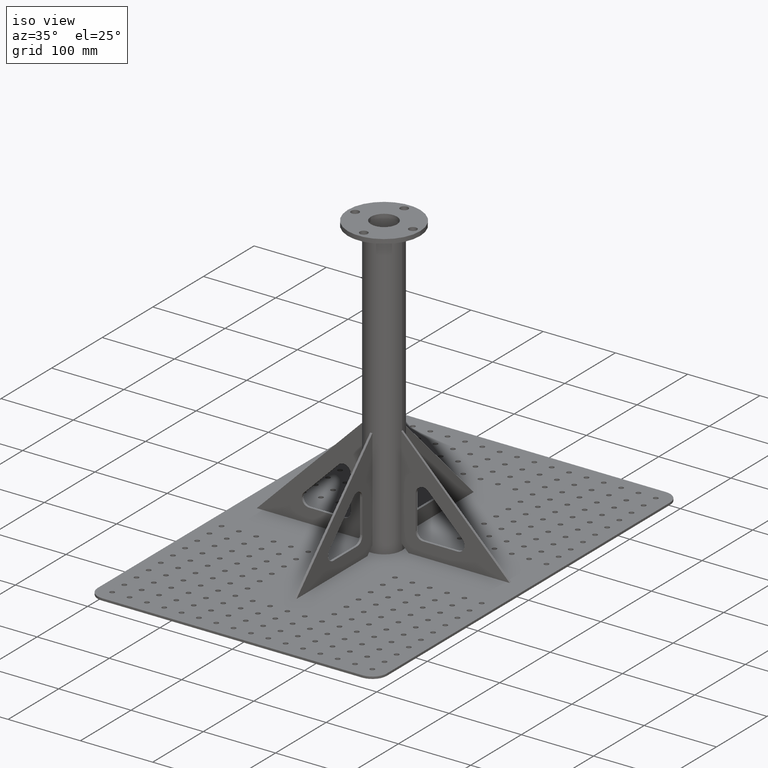
[diagram: clean part render]
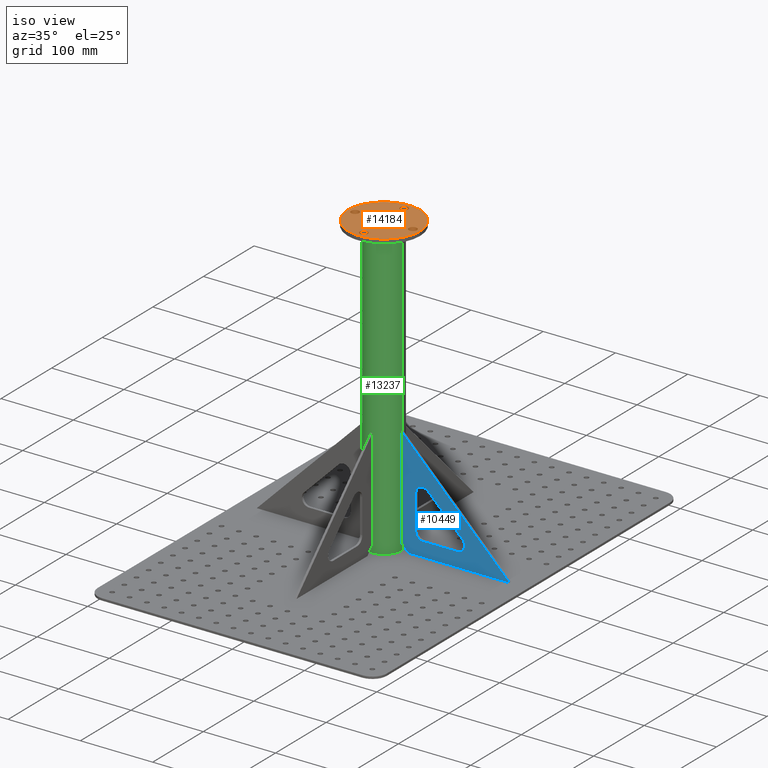
[diagram: same view with three faces highlighted in distinct colors, each labeled with its STEP entity id]
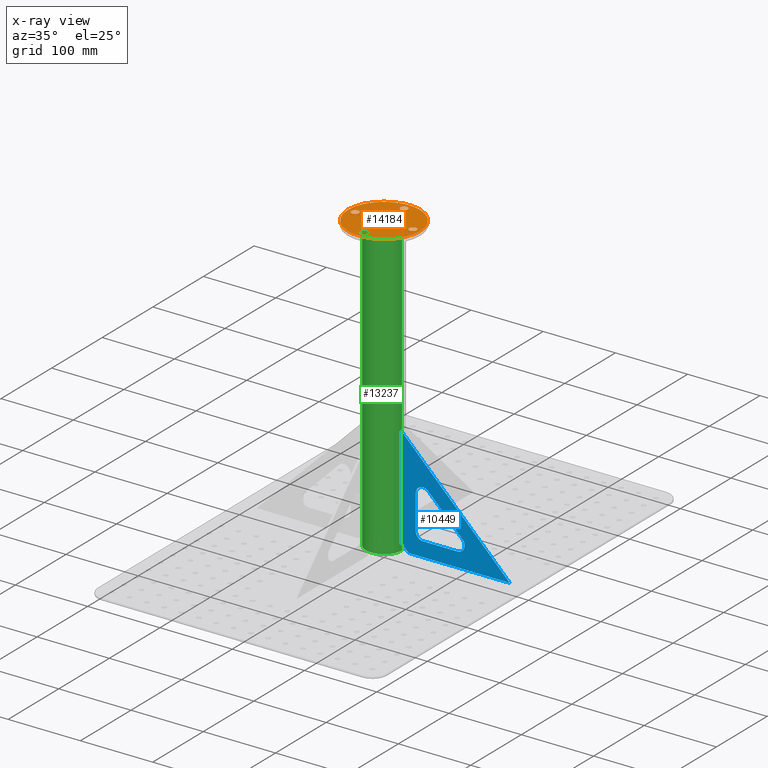
[diagram: x-ray of the same camera — body ghosted, the three highlighted faces saturated]
A machine part, iso view with three faces highlighted in distinct colors.
The next image is the same camera in x-ray (body ghosted, the three faces saturated) — at least one of them is partly hidden behind the body in this view.
Their STEP definitions:

[orange] entity #14184 — the highlighted planar face has unit normal (0, 0, 1).
#165 = ORIENTED_EDGE ( 'NONE', *, *, #16694, .F. ) ;
#187 = CARTESIAN_POINT ( 'NONE',  ( 40.00000000000113000, 1.131969790019571100E-012, 6.000000000000000000 ) ) ;
#231 = EDGE_CURVE ( 'NONE', #17860, #13090, #17701, .T. ) ;
#333 = DIRECTION ( 'NONE',  ( 0.0000000000000000000, 0.0000000000000000000, 1.000000000000000000 ) ) ;
#525 = DIRECTION ( 'NONE',  ( 0.0000000000000000000, 0.0000000000000000000, 1.000000000000000000 ) ) ;
#613 = CARTESIAN_POINT ( 'NONE',  ( 50.00000000000000000, 6.123233995736766100E-015, 6.000000000000000000 ) ) ;
#711 = CARTESIAN_POINT ( 'NONE',  ( 0.0000000000000000000, 0.0000000000000000000, 6.000000000000000000 ) ) ;
#732 = CARTESIAN_POINT ( 'NONE',  ( -45.50000000000068900, -1.136868377216160300E-012, 6.000000000000000000 ) ) ;
#859 = VERTEX_POINT ( 'NONE', #6797 ) ;
#989 = DIRECTION ( 'NONE',  ( 1.000000000000000000, 0.0000000000000000000, 0.0000000000000000000 ) ) ;
#1029 = ORIENTED_EDGE ( 'NONE', *, *, #2082, .T. ) ;
#1185 = DIRECTION ( 'NONE',  ( 0.0000000000000000000, 0.0000000000000000000, 1.000000000000000000 ) ) ;
#1346 = CIRCLE ( 'NONE', #21220, 5.500000000002431800 ) ;
#1422 = DIRECTION ( 'NONE',  ( 0.0000000000000000000, 0.0000000000000000000, 1.000000000000000000 ) ) ;
#1593 = CARTESIAN_POINT ( 'NONE',  ( -39.99999999999887000, -1.136868377216160300E-012, 6.000000000000000000 ) ) ;
#1692 = CARTESIAN_POINT ( 'NONE',  ( 0.0000000000000000000, 40.00000000000000000, 6.000000000000000000 ) ) ;
#1849 = DIRECTION ( 'NONE',  ( 1.000000000000000000, 0.0000000000000000000, 0.0000000000000000000 ) ) ;
#1915 = VERTEX_POINT ( 'NONE', #613 ) ;
#2082 = EDGE_CURVE ( 'NONE', #1915, #4601, #19197, .T. ) ;
#2229 = DIRECTION ( 'NONE',  ( 0.0000000000000000000, 0.0000000000000000000, 1.000000000000000000 ) ) ;
#2238 = CARTESIAN_POINT ( 'NONE',  ( -5.500000000000167900, -40.00000000000000000, 6.000000000000000000 ) ) ;
#2597 = CIRCLE ( 'NONE', #18878, 5.500000000000879300 ) ;
#2887 = AXIS2_PLACEMENT_3D ( 'NONE', #6263, #18052, #7966 ) ;
#2945 = EDGE_CURVE ( 'NONE', #16123, #6654, #8660, .T. ) ;
#3295 = DIRECTION ( 'NONE',  ( 1.000000000000000000, 0.0000000000000000000, 0.0000000000000000000 ) ) ;
#3394 = DIRECTION ( 'NONE',  ( 1.000000000000000000, 0.0000000000000000000, 0.0000000000000000000 ) ) ;
#3706 = ORIENTED_EDGE ( 'NONE', *, *, #7733, .F. ) ;
#3793 = DIRECTION ( 'NONE',  ( 0.0000000000000000000, 0.0000000000000000000, 1.000000000000000000 ) ) ;
#3806 = AXIS2_PLACEMENT_3D ( 'NONE', #10359, #333, #12055 ) ;
#4065 = AXIS2_PLACEMENT_3D ( 'NONE', #11228, #1185, #12935 ) ;
#4081 = PLANE ( 'NONE',  #10476 ) ;
#4539 = FACE_BOUND ( 'NONE', #17967, .T. ) ;
#4593 = CIRCLE ( 'NONE', #11037, 18.00000000000000000 ) ;
#4601 = VERTEX_POINT ( 'NONE', #17078 ) ;
#4909 = ORIENTED_EDGE ( 'NONE', *, *, #2945, .F. ) ;
#5059 = FACE_BOUND ( 'NONE', #14239, .T. ) ;
#6002 = CIRCLE ( 'NONE', #9677, 5.499999999999999100 ) ;
#6219 = CIRCLE ( 'NONE', #19333, 5.500000000001816300 ) ;
#6263 = CARTESIAN_POINT ( 'NONE',  ( 0.0000000000000000000, 0.0000000000000000000, 6.000000000000000000 ) ) ;
#6344 = DIRECTION ( 'NONE',  ( 0.0000000000000000000, 0.0000000000000000000, 1.000000000000000000 ) ) ;
#6654 = VERTEX_POINT ( 'NONE', #17043 ) ;
#6686 = AXIS2_PLACEMENT_3D ( 'NONE', #11460, #1422, #13164 ) ;
#6797 = CARTESIAN_POINT ( 'NONE',  ( 5.500000000004695800, -40.00000000000000000, 6.000000000000000000 ) ) ;
#7276 = CARTESIAN_POINT ( 'NONE',  ( 5.499999999999999100, 40.00000000000000000, 6.000000000000000000 ) ) ;
#7733 = EDGE_CURVE ( 'NONE', #15149, #16418, #6219, .T. ) ;
#7966 = DIRECTION ( 'NONE',  ( 1.000000000000000000, 0.0000000000000000000, 0.0000000000000000000 ) ) ;
#8329 = CARTESIAN_POINT ( 'NONE',  ( 18.00000000000000000, 2.204364238465235400E-015, 6.000000000000000000 ) ) ;
#8660 = CIRCLE ( 'NONE', #9542, 5.500000000000879300 ) ;
#8850 = VERTEX_POINT ( 'NONE', #2238 ) ;
#8990 = FACE_BOUND ( 'NONE', #11105, .T. ) ;
#9055 = EDGE_CURVE ( 'NONE', #4601, #1915, #15503, .T. ) ;
#9072 = VERTEX_POINT ( 'NONE', #17975 ) ;
#9126 = DIRECTION ( 'NONE',  ( 1.000000000000000000, 0.0000000000000000000, -0.0000000000000000000 ) ) ;
#9286 = ORIENTED_EDGE ( 'NONE', *, *, #17940, .F. ) ;
#9516 = FACE_BOUND ( 'NONE', #20891, .T. ) ;
#9542 = AXIS2_PLACEMENT_3D ( 'NONE', #10544, #525, #12260 ) ;
#9590 = CARTESIAN_POINT ( 'NONE',  ( 34.50000000000025600, 1.131969790019571100E-012, 6.000000000000000000 ) ) ;
#9677 = AXIS2_PLACEMENT_3D ( 'NONE', #1692, #13443, #3394 ) ;
#9936 = ORIENTED_EDGE ( 'NONE', *, *, #17455, .F. ) ;
#9962 = AXIS2_PLACEMENT_3D ( 'NONE', #15950, #2229, #20754 ) ;
#10025 = FACE_BOUND ( 'NONE', #20697, .T. ) ;
#10359 = CARTESIAN_POINT ( 'NONE',  ( 0.0000000000000000000, 40.00000000000000000, 6.000000000000000000 ) ) ;
#10446 = CIRCLE ( 'NONE', #3806, 5.499999999999999100 ) ;
#10476 = AXIS2_PLACEMENT_3D ( 'NONE', #711, #19213, #9126 ) ;
#10544 = CARTESIAN_POINT ( 'NONE',  ( 40.00000000000113000, 1.131969790019571100E-012, 6.000000000000000000 ) ) ;
#11018 = DIRECTION ( 'NONE',  ( 0.0000000000000000000, 0.0000000000000000000, 1.000000000000000000 ) ) ;
#11037 = AXIS2_PLACEMENT_3D ( 'NONE', #16415, #6344, #18135 ) ;
#11105 = EDGE_LOOP ( 'NONE', ( #4909, #9286 ) ) ;
#11228 = CARTESIAN_POINT ( 'NONE',  ( 0.0000000000000000000, 0.0000000000000000000, 6.000000000000000000 ) ) ;
#11394 = ORIENTED_EDGE ( 'NONE', *, *, #17985, .F. ) ;
#11460 = CARTESIAN_POINT ( 'NONE',  ( 2.263939580039142200E-012, -40.00000000000000000, 6.000000000000000000 ) ) ;
#11803 = AXIS2_PLACEMENT_3D ( 'NONE', #13845, #3793, #15522 ) ;
#11911 = DIRECTION ( 'NONE',  ( 0.0000000000000000000, 0.0000000000000000000, 1.000000000000000000 ) ) ;
#12055 = DIRECTION ( 'NONE',  ( 1.000000000000000000, 0.0000000000000000000, 0.0000000000000000000 ) ) ;
#12172 = ORIENTED_EDGE ( 'NONE', *, *, #14426, .F. ) ;
#12260 = DIRECTION ( 'NONE',  ( 1.000000000000000000, 0.0000000000000000000, 0.0000000000000000000 ) ) ;
#12269 = ORIENTED_EDGE ( 'NONE', *, *, #20485, .F. ) ;
#12935 = DIRECTION ( 'NONE',  ( 1.000000000000000000, 0.0000000000000000000, 0.0000000000000000000 ) ) ;
#13029 = ORIENTED_EDGE ( 'NONE', *, *, #9055, .T. ) ;
#13090 = VERTEX_POINT ( 'NONE', #19595 ) ;
#13164 = DIRECTION ( 'NONE',  ( 1.000000000000000000, 0.0000000000000000000, 0.0000000000000000000 ) ) ;
#13361 = DIRECTION ( 'NONE',  ( 0.0000000000000000000, 0.0000000000000000000, 1.000000000000000000 ) ) ;
#13443 = DIRECTION ( 'NONE',  ( 0.0000000000000000000, 0.0000000000000000000, 1.000000000000000000 ) ) ;
#13470 = FACE_OUTER_BOUND ( 'NONE', #20815, .T. ) ;
#13718 = CIRCLE ( 'NONE', #6686, 5.500000000002431800 ) ;
#13845 = CARTESIAN_POINT ( 'NONE',  ( -39.99999999999887000, -1.136868377216160300E-012, 6.000000000000000000 ) ) ;
#14184 = ADVANCED_FACE ( 'NONE', ( #10025, #8990, #13470, #5059, #4539, #9516 ), #4081, .T. ) ;
#14239 = EDGE_LOOP ( 'NONE', ( #12269, #20491 ) ) ;
#14426 = EDGE_CURVE ( 'NONE', #8850, #859, #13718, .T. ) ;
#14677 = ORIENTED_EDGE ( 'NONE', *, *, #15417, .F. ) ;
#15149 = VERTEX_POINT ( 'NONE', #18804 ) ;
#15417 = EDGE_CURVE ( 'NONE', #859, #8850, #1346, .T. ) ;
#15503 = CIRCLE ( 'NONE', #2887, 50.00000000000000000 ) ;
#15522 = DIRECTION ( 'NONE',  ( 1.000000000000000000, 0.0000000000000000000, 0.0000000000000000000 ) ) ;
#15950 = CARTESIAN_POINT ( 'NONE',  ( 0.0000000000000000000, 0.0000000000000000000, 6.000000000000000000 ) ) ;
#16123 = VERTEX_POINT ( 'NONE', #9590 ) ;
#16226 = CIRCLE ( 'NONE', #11803, 5.500000000001816300 ) ;
#16415 = CARTESIAN_POINT ( 'NONE',  ( 0.0000000000000000000, 0.0000000000000000000, 6.000000000000000000 ) ) ;
#16418 = VERTEX_POINT ( 'NONE', #732 ) ;
#16694 = EDGE_CURVE ( 'NONE', #16926, #9072, #6002, .T. ) ;
#16926 = VERTEX_POINT ( 'NONE', #7276 ) ;
#17043 = CARTESIAN_POINT ( 'NONE',  ( 45.50000000000201100, 1.132643345759102200E-012, 6.000000000000000000 ) ) ;
#17078 = CARTESIAN_POINT ( 'NONE',  ( -50.00000000000000000, 0.0000000000000000000, 6.000000000000000000 ) ) ;
#17455 = EDGE_CURVE ( 'NONE', #16418, #15149, #16226, .T. ) ;
#17701 = CIRCLE ( 'NONE', #9962, 18.00000000000000000 ) ;
#17860 = VERTEX_POINT ( 'NONE', #8329 ) ;
#17940 = EDGE_CURVE ( 'NONE', #6654, #16123, #2597, .T. ) ;
#17967 = EDGE_LOOP ( 'NONE', ( #12172, #14677 ) ) ;
#17975 = CARTESIAN_POINT ( 'NONE',  ( -5.499999999999999100, 40.00000000000000000, 6.000000000000000000 ) ) ;
#17985 = EDGE_CURVE ( 'NONE', #9072, #16926, #10446, .T. ) ;
#18052 = DIRECTION ( 'NONE',  ( 0.0000000000000000000, 0.0000000000000000000, 1.000000000000000000 ) ) ;
#18135 = DIRECTION ( 'NONE',  ( 1.000000000000000000, 0.0000000000000000000, 0.0000000000000000000 ) ) ;
#18804 = CARTESIAN_POINT ( 'NONE',  ( -34.49999999999705100, -1.136194821476629000E-012, 6.000000000000000000 ) ) ;
#18878 = AXIS2_PLACEMENT_3D ( 'NONE', #187, #11911, #1849 ) ;
#19197 = CIRCLE ( 'NONE', #4065, 50.00000000000000000 ) ;
#19213 = DIRECTION ( 'NONE',  ( 0.0000000000000000000, 0.0000000000000000000, 1.000000000000000000 ) ) ;
#19333 = AXIS2_PLACEMENT_3D ( 'NONE', #1593, #13361, #3295 ) ;
#19595 = CARTESIAN_POINT ( 'NONE',  ( -18.00000000000000000, 0.0000000000000000000, 6.000000000000000000 ) ) ;
#20485 = EDGE_CURVE ( 'NONE', #13090, #17860, #4593, .T. ) ;
#20491 = ORIENTED_EDGE ( 'NONE', *, *, #231, .F. ) ;
#20697 = EDGE_LOOP ( 'NONE', ( #11394, #165 ) ) ;
#20754 = DIRECTION ( 'NONE',  ( 1.000000000000000000, 0.0000000000000000000, 0.0000000000000000000 ) ) ;
#20815 = EDGE_LOOP ( 'NONE', ( #13029, #1029 ) ) ;
#20891 = EDGE_LOOP ( 'NONE', ( #9936, #3706 ) ) ;
#21107 = CARTESIAN_POINT ( 'NONE',  ( 2.263939580039142200E-012, -40.00000000000000000, 6.000000000000000000 ) ) ;
#21220 = AXIS2_PLACEMENT_3D ( 'NONE', #21107, #11018, #989 ) ;

[blue] entity #10449 — the highlighted planar face has unit normal (0, 1, 0).
#296 = DIRECTION ( 'NONE',  ( -1.000000000000000000, 0.0000000000000000000, 0.0000000000000000000 ) ) ;
#434 = CARTESIAN_POINT ( 'NONE',  ( 62.42640687119286700, 30.00000000000000000, 0.0000000000000000000 ) ) ;
#882 = VERTEX_POINT ( 'NONE', #434 ) ;
#1189 = CARTESIAN_POINT ( 'NONE',  ( 130.0000000000000000, 30.00000000000000000, 0.0000000000000000000 ) ) ;
#1297 = FACE_BOUND ( 'NONE', #12942, .T. ) ;
#1546 = VERTEX_POINT ( 'NONE', #1189 ) ;
#1605 = EDGE_CURVE ( 'NONE', #9735, #13006, #14702, .T. ) ;
#2069 = AXIS2_PLACEMENT_3D ( 'NONE', #20422, #10320, #296 ) ;
#2304 = ORIENTED_EDGE ( 'NONE', *, *, #20500, .T. ) ;
#2400 = VERTEX_POINT ( 'NONE', #20865 ) ;
#2554 = CARTESIAN_POINT ( 'NONE',  ( 119.9999999999999400, 20.00000000000000000, 0.0000000000000000000 ) ) ;
#2594 = AXIS2_PLACEMENT_3D ( 'NONE', #14999, #4963, #16711 ) ;
#2598 = VECTOR ( 'NONE', #18078, 1000.000000000000100 ) ;
#2680 = EDGE_CURVE ( 'NONE', #2400, #8970, #13401, .T. ) ;
#2916 = VERTEX_POINT ( 'NONE', #17038 ) ;
#3039 = VECTOR ( 'NONE', #11600, 1000.000000000000100 ) ;
#3149 = CARTESIAN_POINT ( 'NONE',  ( 72.42640687119310900, 20.00000000000000000, 0.0000000000000000000 ) ) ;
#3555 = LINE ( 'NONE', #20005, #3039 ) ;
#3584 = CARTESIAN_POINT ( 'NONE',  ( 139.9999999999999700, 0.0000000000000000000, 0.0000000000000000000 ) ) ;
#4317 = ORIENTED_EDGE ( 'NONE', *, *, #9030, .T. ) ;
#4430 = DIRECTION ( 'NONE',  ( 1.000000000000000000, 0.0000000000000000000, -0.0000000000000000000 ) ) ;
#4754 = ORIENTED_EDGE ( 'NONE', *, *, #17911, .F. ) ;
#4963 = DIRECTION ( 'NONE',  ( 0.0000000000000000000, 0.0000000000000000000, 1.000000000000000000 ) ) ;
#5030 = LINE ( 'NONE', #8949, #8458 ) ;
#5031 = EDGE_CURVE ( 'NONE', #6281, #8770, #3555, .T. ) ;
#5181 = AXIS2_PLACEMENT_3D ( 'NONE', #18722, #8641, #20414 ) ;
#5323 = CARTESIAN_POINT ( 'NONE',  ( 65.35533905932756200, 37.07106781186564600, 0.0000000000000000000 ) ) ;
#6281 = VERTEX_POINT ( 'NONE', #19359 ) ;
#6594 = ORIENTED_EDGE ( 'NONE', *, *, #14713, .F. ) ;
#6732 = CIRCLE ( 'NONE', #5181, 10.00000000000000900 ) ;
#6752 = CARTESIAN_POINT ( 'NONE',  ( 130.0000000000000000, 77.57359312880690500, 0.0000000000000000000 ) ) ;
#7016 = EDGE_CURVE ( 'NONE', #8970, #2916, #7047, .T. ) ;
#7046 = LINE ( 'NONE', #20170, #19940 ) ;
#7047 = LINE ( 'NONE', #9589, #2598 ) ;
#7284 = DIRECTION ( 'NONE',  ( 1.000000000000000000, 0.0000000000000000000, 0.0000000000000000000 ) ) ;
#7878 = VERTEX_POINT ( 'NONE', #3584 ) ;
#8054 = CARTESIAN_POINT ( 'NONE',  ( 130.0000000000000000, 30.00000000000007100, 0.0000000000000000000 ) ) ;
#8091 = CARTESIAN_POINT ( 'NONE',  ( 150.0000000000000000, 10.00000000000000000, 0.0000000000000000000 ) ) ;
#8264 = ORIENTED_EDGE ( 'NONE', *, *, #2680, .F. ) ;
#8457 = ORIENTED_EDGE ( 'NONE', *, *, #12773, .T. ) ;
#8458 = VECTOR ( 'NONE', #7284, 1000.000000000000000 ) ;
#8476 = DIRECTION ( 'NONE',  ( 0.7071067811865479100, 0.7071067811865472400, -0.0000000000000000000 ) ) ;
#8641 = DIRECTION ( 'NONE',  ( 0.0000000000000000000, 0.0000000000000000000, 1.000000000000000000 ) ) ;
#8645 = EDGE_CURVE ( 'NONE', #13006, #1546, #18449, .T. ) ;
#8770 = VERTEX_POINT ( 'NONE', #5323 ) ;
#8949 = CARTESIAN_POINT ( 'NONE',  ( 0.0000000000000000000, 0.0000000000000000000, 0.0000000000000000000 ) ) ;
#8970 = VERTEX_POINT ( 'NONE', #14414 ) ;
#9030 = EDGE_CURVE ( 'NONE', #882, #9735, #16034, .T. ) ;
#9391 = ORIENTED_EDGE ( 'NONE', *, *, #5031, .T. ) ;
#9562 = DIRECTION ( 'NONE',  ( 0.0000000000000000000, 0.0000000000000000000, 1.000000000000000000 ) ) ;
#9589 = CARTESIAN_POINT ( 'NONE',  ( 150.0000000000000000, 150.0000000000000000, 0.0000000000000000000 ) ) ;
#9735 = VERTEX_POINT ( 'NONE', #3149 ) ;
#10233 = VECTOR ( 'NONE', #14102, 1000.000000000000000 ) ;
#10320 = DIRECTION ( 'NONE',  ( 0.0000000000000000000, 0.0000000000000000000, 1.000000000000000000 ) ) ;
#10449 = ADVANCED_FACE ( 'NONE', ( #15190, #1297 ), #16092, .F. ) ;
#11107 = EDGE_LOOP ( 'NONE', ( #6594, #19529, #8264, #4754 ) ) ;
#11600 = DIRECTION ( 'NONE',  ( -0.7071067811865474600, -0.7071067811865474600, 0.0000000000000000000 ) ) ;
#12478 = VECTOR ( 'NONE', #13123, 1000.000000000000000 ) ;
#12773 = EDGE_CURVE ( 'NONE', #19538, #6281, #6732, .T. ) ;
#12817 = CARTESIAN_POINT ( 'NONE',  ( 0.0000000000000000000, 0.0000000000000000000, 0.0000000000000000000 ) ) ;
#12942 = EDGE_LOOP ( 'NONE', ( #13243, #4317, #13938, #20933, #2304, #8457, #9391 ) ) ;
#13006 = VERTEX_POINT ( 'NONE', #2554 ) ;
#13123 = DIRECTION ( 'NONE',  ( 0.0000000000000000000, 1.000000000000000000, 0.0000000000000000000 ) ) ;
#13243 = ORIENTED_EDGE ( 'NONE', *, *, #15121, .T. ) ;
#13401 = LINE ( 'NONE', #8091, #17363 ) ;
#13938 = ORIENTED_EDGE ( 'NONE', *, *, #1605, .T. ) ;
#14102 = DIRECTION ( 'NONE',  ( 1.000000000000000000, 0.0000000000000000000, 0.0000000000000000000 ) ) ;
#14414 = CARTESIAN_POINT ( 'NONE',  ( 150.0000000000000000, 150.0000000000000000, 0.0000000000000000000 ) ) ;
#14475 = DIRECTION ( 'NONE',  ( 0.0000000000000000000, 0.0000000000000000000, 1.000000000000000000 ) ) ;
#14702 = LINE ( 'NONE', #20778, #10233 ) ;
#14713 = EDGE_CURVE ( 'NONE', #2916, #7878, #5030, .T. ) ;
#14964 = AXIS2_PLACEMENT_3D ( 'NONE', #12817, #14475, #4430 ) ;
#14977 = CIRCLE ( 'NONE', #2069, 10.00000000000000200 ) ;
#14999 = CARTESIAN_POINT ( 'NONE',  ( 120.0000000000000100, 30.00000000000000000, 0.0000000000000000000 ) ) ;
#15121 = EDGE_CURVE ( 'NONE', #8770, #882, #14977, .T. ) ;
#15190 = FACE_OUTER_BOUND ( 'NONE', #11107, .T. ) ;
#16034 = CIRCLE ( 'NONE', #17949, 10.00000000000000200 ) ;
#16092 = PLANE ( 'NONE',  #14964 ) ;
#16453 = DIRECTION ( 'NONE',  ( 0.0000000000000000000, 1.000000000000000000, 0.0000000000000000000 ) ) ;
#16711 = DIRECTION ( 'NONE',  ( 1.000000000000000000, 0.0000000000000000000, 0.0000000000000000000 ) ) ;
#17038 = CARTESIAN_POINT ( 'NONE',  ( 0.0000000000000000000, 0.0000000000000000000, 0.0000000000000000000 ) ) ;
#17363 = VECTOR ( 'NONE', #16453, 1000.000000000000000 ) ;
#17490 = LINE ( 'NONE', #8054, #12478 ) ;
#17911 = EDGE_CURVE ( 'NONE', #7878, #2400, #7046, .T. ) ;
#17949 = AXIS2_PLACEMENT_3D ( 'NONE', #19657, #9562, #21332 ) ;
#18078 = DIRECTION ( 'NONE',  ( -0.7071067811865474600, -0.7071067811865474600, 0.0000000000000000000 ) ) ;
#18449 = CIRCLE ( 'NONE', #2594, 9.999999999999994700 ) ;
#18722 = CARTESIAN_POINT ( 'NONE',  ( 120.0000000000000000, 77.57359312880714700, 0.0000000000000000000 ) ) ;
#19359 = CARTESIAN_POINT ( 'NONE',  ( 112.9289321881343500, 84.64466094067245200, 0.0000000000000000000 ) ) ;
#19529 = ORIENTED_EDGE ( 'NONE', *, *, #7016, .F. ) ;
#19538 = VERTEX_POINT ( 'NONE', #6752 ) ;
#19657 = CARTESIAN_POINT ( 'NONE',  ( 72.42640687119286700, 30.00000000000000000, 0.0000000000000000000 ) ) ;
#19940 = VECTOR ( 'NONE', #8476, 1000.000000000000000 ) ;
#20005 = CARTESIAN_POINT ( 'NONE',  ( 112.9289321881343500, 84.64466094067243800, 0.0000000000000000000 ) ) ;
#20170 = CARTESIAN_POINT ( 'NONE',  ( 150.0000000000000000, 10.00000000000000000, 0.0000000000000000000 ) ) ;
#20414 = DIRECTION ( 'NONE',  ( 1.000000000000000000, 0.0000000000000000000, 0.0000000000000000000 ) ) ;
#20422 = CARTESIAN_POINT ( 'NONE',  ( 72.42640687119286700, 30.00000000000000000, 0.0000000000000000000 ) ) ;
#20500 = EDGE_CURVE ( 'NONE', #1546, #19538, #17490, .T. ) ;
#20778 = CARTESIAN_POINT ( 'NONE',  ( 72.42640687119310900, 20.00000000000000000, 0.0000000000000000000 ) ) ;
#20865 = CARTESIAN_POINT ( 'NONE',  ( 150.0000000000000000, 10.00000000000000000, 0.0000000000000000000 ) ) ;
#20933 = ORIENTED_EDGE ( 'NONE', *, *, #8645, .T. ) ;
#21332 = DIRECTION ( 'NONE',  ( -1.000000000000000000, 0.0000000000000000000, 0.0000000000000000000 ) ) ;

[green] entity #13237 — the highlighted cylindrical surface (edge-blend (fillet) strip) has radius 25 mm, axis along (-0, -0, -1).
#323 = CARTESIAN_POINT ( 'NONE',  ( 0.0000000000000000000, 0.0000000000000000000, 400.0000000000000000 ) ) ;
#394 = EDGE_CURVE ( 'NONE', #10918, #12987, #20043, .T. ) ;
#851 = EDGE_LOOP ( 'NONE', ( #2571, #18220, #14253, #3506 ) ) ;
#1276 = LINE ( 'NONE', #14442, #4678 ) ;
#2200 = CARTESIAN_POINT ( 'NONE',  ( 0.0000000000000000000, 0.0000000000000000000, 0.0000000000000000000 ) ) ;
#2252 = CYLINDRICAL_SURFACE ( 'NONE', #4352, 25.00000000000000000 ) ;
#2571 = ORIENTED_EDGE ( 'NONE', *, *, #11027, .F. ) ;
#3187 = DIRECTION ( 'NONE',  ( -1.000000000000000000, 0.0000000000000000000, 0.0000000000000000000 ) ) ;
#3506 = ORIENTED_EDGE ( 'NONE', *, *, #6737, .T. ) ;
#3890 = DIRECTION ( 'NONE',  ( 1.000000000000000000, 0.0000000000000000000, 0.0000000000000000000 ) ) ;
#4118 = CARTESIAN_POINT ( 'NONE',  ( -25.00000000000000000, 0.0000000000000000000, 400.0000000000000000 ) ) ;
#4352 = AXIS2_PLACEMENT_3D ( 'NONE', #9848, #18275, #3187 ) ;
#4678 = VECTOR ( 'NONE', #11144, 1000.000000000000000 ) ;
#5295 = DIRECTION ( 'NONE',  ( 1.000000000000000000, 0.0000000000000000000, 0.0000000000000000000 ) ) ;
#5519 = AXIS2_PLACEMENT_3D ( 'NONE', #2200, #13942, #3890 ) ;
#6737 = EDGE_CURVE ( 'NONE', #18881, #20166, #16256, .T. ) ;
#6986 = DIRECTION ( 'NONE',  ( 0.0000000000000000000, 0.0000000000000000000, 1.000000000000000000 ) ) ;
#7571 = LINE ( 'NONE', #19386, #17027 ) ;
#8105 = EDGE_CURVE ( 'NONE', #10918, #18881, #7571, .T. ) ;
#8864 = CARTESIAN_POINT ( 'NONE',  ( 25.00000000000000000, 3.061616997868383000E-015, 0.0000000000000000000 ) ) ;
#9848 = CARTESIAN_POINT ( 'NONE',  ( 0.0000000000000000000, 0.0000000000000000000, 400.0000000000000000 ) ) ;
#10918 = VERTEX_POINT ( 'NONE', #4118 ) ;
#11027 = EDGE_CURVE ( 'NONE', #12987, #20166, #1276, .T. ) ;
#11144 = DIRECTION ( 'NONE',  ( -0.0000000000000000000, -0.0000000000000000000, -1.000000000000000000 ) ) ;
#12615 = CARTESIAN_POINT ( 'NONE',  ( 25.00000000000000000, 3.061616997868383000E-015, 400.0000000000000000 ) ) ;
#12987 = VERTEX_POINT ( 'NONE', #12615 ) ;
#13084 = CARTESIAN_POINT ( 'NONE',  ( -25.00000000000000000, 0.0000000000000000000, 0.0000000000000000000 ) ) ;
#13237 = ADVANCED_FACE ( 'NONE', ( #20137 ), #2252, .T. ) ;
#13942 = DIRECTION ( 'NONE',  ( 0.0000000000000000000, 0.0000000000000000000, 1.000000000000000000 ) ) ;
#14253 = ORIENTED_EDGE ( 'NONE', *, *, #8105, .T. ) ;
#14442 = CARTESIAN_POINT ( 'NONE',  ( 25.00000000000000000, 3.061616997868383000E-015, 400.0000000000000000 ) ) ;
#15900 = DIRECTION ( 'NONE',  ( -0.0000000000000000000, -0.0000000000000000000, -1.000000000000000000 ) ) ;
#16256 = CIRCLE ( 'NONE', #5519, 25.00000000000000000 ) ;
#17027 = VECTOR ( 'NONE', #15900, 1000.000000000000000 ) ;
#18220 = ORIENTED_EDGE ( 'NONE', *, *, #394, .F. ) ;
#18275 = DIRECTION ( 'NONE',  ( -0.0000000000000000000, -0.0000000000000000000, -1.000000000000000000 ) ) ;
#18881 = VERTEX_POINT ( 'NONE', #13084 ) ;
#19386 = CARTESIAN_POINT ( 'NONE',  ( -25.00000000000000000, 0.0000000000000000000, 400.0000000000000000 ) ) ;
#20043 = CIRCLE ( 'NONE', #21271, 25.00000000000000000 ) ;
#20137 = FACE_OUTER_BOUND ( 'NONE', #851, .T. ) ;
#20166 = VERTEX_POINT ( 'NONE', #8864 ) ;
#21271 = AXIS2_PLACEMENT_3D ( 'NONE', #323, #6986, #5295 ) ;